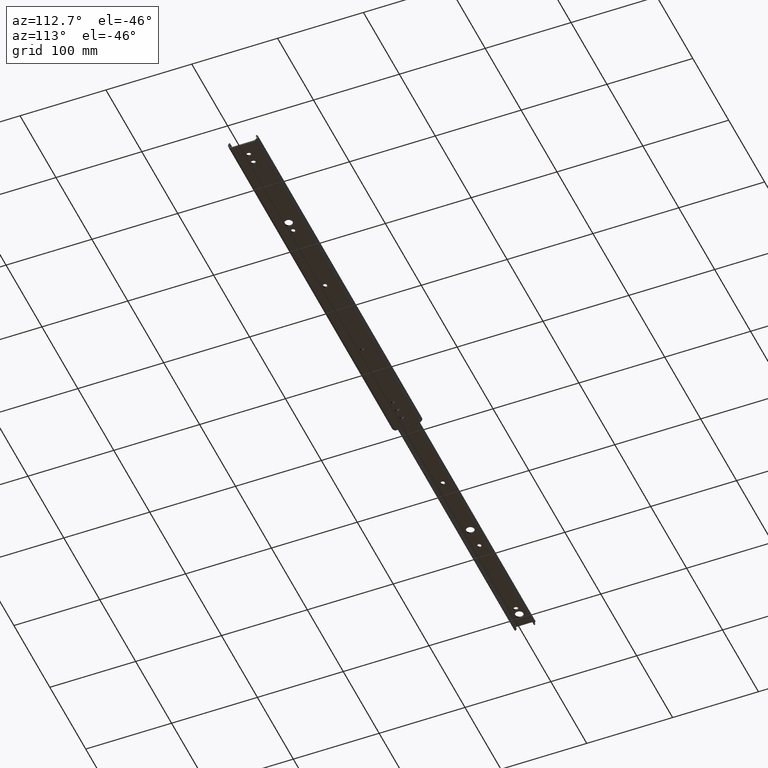
[diagram: clean part render]
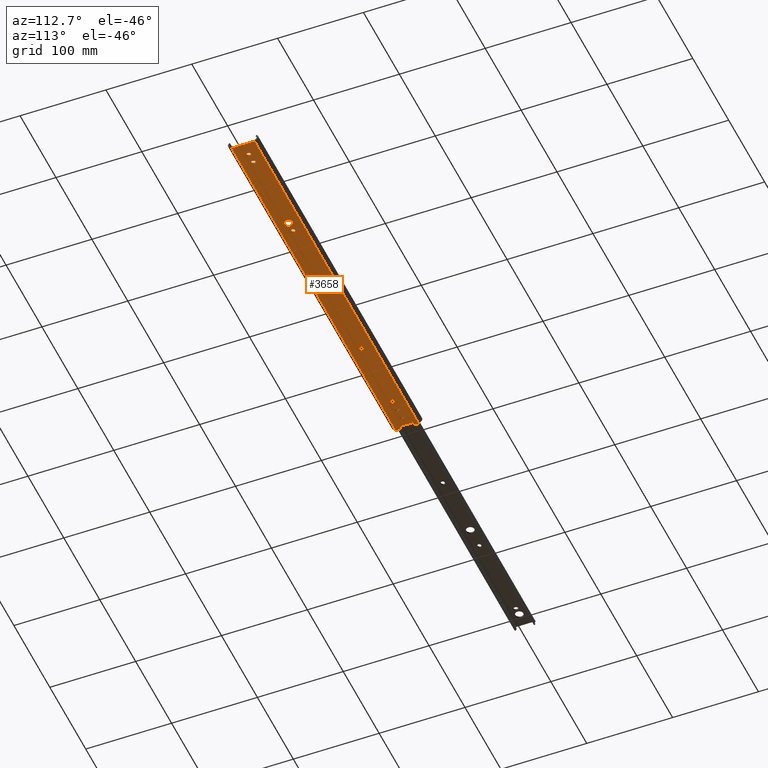
[diagram: same view with one face highlighted and labeled with its STEP entity id]
A machine part, auxiliary view. The second image highlights one B-rep face of the part: STEP entity #3658.
In plain terms, the highlighted planar face has unit normal (0, 0, 1).
Its self-contained STEP definition (entity closure, byte-faithful):
#4 = CARTESIAN_POINT ( 'NONE',  ( 441.3000000000000700, 0.4000000000000299400, -2.168404344971008900E-016 ) ) ;
#15 = CARTESIAN_POINT ( 'NONE',  ( 439.0500000000000100, 0.4000000000001403000, -2.168404344971008900E-016 ) ) ;
#31 = CARTESIAN_POINT ( 'NONE',  ( 28.60000000000000100, 0.4000000000000039600, -2.168404344971008900E-016 ) ) ;
#49 = VERTEX_POINT ( 'NONE', #1474 ) ;
#56 = CARTESIAN_POINT ( 'NONE',  ( 317.9000000000000900, 4.459067650181453500E-014, 0.0000000000000000000 ) ) ;
#104 = CARTESIAN_POINT ( 'NONE',  ( 457.1999999999999900, 2.249999999999955100, 0.0000000000000000000 ) ) ;
#120 = VERTEX_POINT ( 'NONE', #374 ) ;
#125 = ORIENTED_EDGE ( 'NONE', *, *, #1478, .T. ) ;
#132 = VERTEX_POINT ( 'NONE', #1329 ) ;
#135 = ORIENTED_EDGE ( 'NONE', *, *, #1177, .T. ) ;
#155 = ORIENTED_EDGE ( 'NONE', *, *, #2026, .T. ) ;
#161 = CARTESIAN_POINT ( 'NONE',  ( 317.0999999999999700, 2.249999999999955100, 0.0000000000000000000 ) ) ;
#164 = CARTESIAN_POINT ( 'NONE',  ( 127.4000000000000200, 1.579959826756716300E-014, 0.0000000000000000000 ) ) ;
#183 = ORIENTED_EDGE ( 'NONE', *, *, #3178, .T. ) ;
#190 = AXIS2_PLACEMENT_3D ( 'NONE', #797, #3042, #1117 ) ;
#201 = CARTESIAN_POINT ( 'NONE',  ( 30.85000000000000100, 0.4000000000000043000, -2.168404344971008900E-016 ) ) ;
#202 = ORIENTED_EDGE ( 'NONE', *, *, #1398, .T. ) ;
#214 = CARTESIAN_POINT ( 'NONE',  ( 13.64999999999999500, -0.3999999999999946400, 0.0000000000000000000 ) ) ;
#215 = FACE_BOUND ( 'NONE', #3186, .T. ) ;
#223 = ORIENTED_EDGE ( 'NONE', *, *, #1412, .T. ) ;
#233 = EDGE_CURVE ( 'NONE', #2104, #672, #3168, .T. ) ;
#260 = CARTESIAN_POINT ( 'NONE',  ( 457.1999999999999900, 2.249999999999992000, 0.0000000000000000000 ) ) ;
#264 = AXIS2_PLACEMENT_3D ( 'NONE', #164, #2426, #502 ) ;
#276 = CIRCLE ( 'NONE', #2463, 2.250000000000001800 ) ;
#293 = VERTEX_POINT ( 'NONE', #1776 ) ;
#299 = VERTEX_POINT ( 'NONE', #161 ) ;
#303 = DIRECTION ( 'NONE',  ( 0.0000000000000000000, 0.0000000000000000000, 1.000000000000000000 ) ) ;
#311 = DIRECTION ( 'NONE',  ( 1.000000000000000000, 0.0000000000000000000, 0.0000000000000000000 ) ) ;
#312 = DIRECTION ( 'NONE',  ( -0.0000000000000000000, 1.000000000000000000, -0.0000000000000000000 ) ) ;
#318 = LINE ( 'NONE', #3065, #2800 ) ;
#324 = EDGE_CURVE ( 'NONE', #3863, #1524, #3798, .T. ) ;
#325 = VERTEX_POINT ( 'NONE', #2106 ) ;
#327 = CARTESIAN_POINT ( 'NONE',  ( 430.8500000000000800, 0.4000000000000841800, -2.168404344971008900E-016 ) ) ;
#328 = CARTESIAN_POINT ( 'NONE',  ( 127.4000000000000200, 2.249999999999992000, 0.0000000000000000000 ) ) ;
#334 = DIRECTION ( 'NONE',  ( 1.000000000000000000, 0.0000000000000000000, 0.0000000000000000000 ) ) ;
#335 = VECTOR ( 'NONE', #596, 1000.000000000000000 ) ;
#343 = CARTESIAN_POINT ( 'NONE',  ( 426.3500000000000800, -0.4000000000000263300, 0.0000000000000000000 ) ) ;
#345 = CARTESIAN_POINT ( 'NONE',  ( 426.3500000000000800, 0.4000000000000268900, -2.168404344971008900E-016 ) ) ;
#354 = DIRECTION ( 'NONE',  ( -0.0000000000000000000, 1.000000000000000000, -0.0000000000000000000 ) ) ;
#360 = DIRECTION ( 'NONE',  ( 1.000000000000000000, 0.0000000000000000000, 0.0000000000000000000 ) ) ;
#362 = DIRECTION ( 'NONE',  ( 0.0000000000000000000, 0.0000000000000000000, 1.000000000000000000 ) ) ;
#374 = CARTESIAN_POINT ( 'NONE',  ( 13.64999999999999900, 0.3999999999999946400, -2.168404344971008900E-016 ) ) ;
#382 = LINE ( 'NONE', #15, #1141 ) ;
#390 = CARTESIAN_POINT ( 'NONE',  ( 18.15000000000000200, 0.3999999999999964100, -2.168404344971008900E-016 ) ) ;
#404 = AXIS2_PLACEMENT_3D ( 'NONE', #3669, #1767, #3985 ) ;
#407 = CARTESIAN_POINT ( 'NONE',  ( 228.1999999999999900, 2.249999999999968900, 0.0000000000000000000 ) ) ;
#430 = FACE_BOUND ( 'NONE', #1635, .T. ) ;
#441 = VECTOR ( 'NONE', #4068, 1000.000000000000000 ) ;
#449 = LINE ( 'NONE', #3149, #335 ) ;
#459 = CARTESIAN_POINT ( 'NONE',  ( 330.1999999999999900, 0.0000000000000000000, -2.168404344971008900E-016 ) ) ;
#486 = CARTESIAN_POINT ( 'NONE',  ( 40.89999999999999100, 2.249999999999998700, 0.0000000000000000000 ) ) ;
#488 = AXIS2_PLACEMENT_3D ( 'NONE', #1197, #1155, #3013 ) ;
#490 = EDGE_CURVE ( 'NONE', #1271, #1428, #761, .T. ) ;
#502 = DIRECTION ( 'NONE',  ( 1.000000000000000000, 0.0000000000000000000, 0.0000000000000000000 ) ) ;
#515 = CARTESIAN_POINT ( 'NONE',  ( 317.9000000000000900, -2.250000000000044400, 0.0000000000000000000 ) ) ;
#518 = VERTEX_POINT ( 'NONE', #1912 ) ;
#526 = VERTEX_POINT ( 'NONE', #2568 ) ;
#529 = ORIENTED_EDGE ( 'NONE', *, *, #2638, .T. ) ;
#532 = CARTESIAN_POINT ( 'NONE',  ( 441.3000000000000100, -0.3999999999999105900, -2.168404344971008900E-016 ) ) ;
#534 = CARTESIAN_POINT ( 'NONE',  ( 229.0000000000000000, 1.580616412669949000E-014, 0.0000000000000000000 ) ) ;
#541 = VECTOR ( 'NONE', #1561, 1000.000000000000000 ) ;
#555 = CIRCLE ( 'NONE', #3067, 2.250000000000001800 ) ;
#570 = DIRECTION ( 'NONE',  ( 1.000000000000000000, 0.0000000000000000000, -0.0000000000000000000 ) ) ;
#572 = AXIS2_PLACEMENT_3D ( 'NONE', #2306, #362, #2619 ) ;
#575 = VERTEX_POINT ( 'NONE', #2332 ) ;
#586 = VERTEX_POINT ( 'NONE', #3901 ) ;
#588 = CARTESIAN_POINT ( 'NONE',  ( 229.0000000000000000, -2.250000000000030600, 0.0000000000000000000 ) ) ;
#592 = LINE ( 'NONE', #2918, #2953 ) ;
#596 = DIRECTION ( 'NONE',  ( -1.000000000000000000, -0.0000000000000000000, -0.0000000000000000000 ) ) ;
#623 = CARTESIAN_POINT ( 'NONE',  ( 3.799999999999999800, 8.000000000000000000, 0.0000000000000000000 ) ) ;
#627 = ORIENTED_EDGE ( 'NONE', *, *, #3072, .T. ) ;
#631 = VERTEX_POINT ( 'NONE', #1652 ) ;
#633 = VERTEX_POINT ( 'NONE', #1306 ) ;
#641 = LINE ( 'NONE', #4107, #541 ) ;
#643 = CARTESIAN_POINT ( 'NONE',  ( 26.34999999999998400, -0.4000000000000036300, 0.0000000000000000000 ) ) ;
#665 = CARTESIAN_POINT ( 'NONE',  ( 0.0000000000000000000, -13.40000000000015700, 0.0000000000000000000 ) ) ;
#672 = VERTEX_POINT ( 'NONE', #953 ) ;
#681 = CIRCLE ( 'NONE', #1347, 2.250000000000001800 ) ;
#692 = CARTESIAN_POINT ( 'NONE',  ( 28.60000000000000100, -0.3999999999999919200, -2.168404344971008900E-016 ) ) ;
#708 = CARTESIAN_POINT ( 'NONE',  ( 317.0999999999999700, 0.0000000000000000000, 0.0000000000000000000 ) ) ;
#724 = VERTEX_POINT ( 'NONE', #2980 ) ;
#729 = LINE ( 'NONE', #3697, #1686 ) ;
#732 = CARTESIAN_POINT ( 'NONE',  ( 439.0500000000000100, -0.4000000000001400800, 0.0000000000000000000 ) ) ;
#738 = CIRCLE ( 'NONE', #1869, 2.250000000000001800 ) ;
#761 = CIRCLE ( 'NONE', #1241, 2.250000000000001800 ) ;
#764 = CARTESIAN_POINT ( 'NONE',  ( 3.799999999999999400, 7.000000000000000000, 0.0000000000000000000 ) ) ;
#779 = DIRECTION ( 'NONE',  ( 1.000000000000000000, 0.0000000000000000000, 0.0000000000000000000 ) ) ;
#797 = CARTESIAN_POINT ( 'NONE',  ( 428.6000000000000200, -0.3999999999999676600, -2.168404344971008900E-016 ) ) ;
#800 = LINE ( 'NONE', #1439, #4088 ) ;
#825 = CARTESIAN_POINT ( 'NONE',  ( 457.1999999999999900, 2.249999999999968900, 0.0000000000000000000 ) ) ;
#845 = CARTESIAN_POINT ( 'NONE',  ( 0.0000000000000000000, 0.0000000000000000000, 0.0000000000000000000 ) ) ;
#847 = VECTOR ( 'NONE', #1691, 1000.000000000000000 ) ;
#856 = EDGE_CURVE ( 'NONE', #3372, #3863, #4147, .T. ) ;
#859 = DIRECTION ( 'NONE',  ( 1.000000000000000000, 0.0000000000000000000, 0.0000000000000000000 ) ) ;
#873 = DIRECTION ( 'NONE',  ( 0.0000000000000000000, 0.0000000000000000000, 1.000000000000000000 ) ) ;
#876 = PLANE ( 'NONE',  #3417 ) ;
#900 = ORIENTED_EDGE ( 'NONE', *, *, #2782, .T. ) ;
#904 = CARTESIAN_POINT ( 'NONE',  ( 430.8500000000000800, 0.4000000000000841800, -2.168404344971008900E-016 ) ) ;
#911 = VERTEX_POINT ( 'NONE', #4133 ) ;
#927 = DIRECTION ( 'NONE',  ( 0.0000000000000000000, 0.0000000000000000000, 1.000000000000000000 ) ) ;
#929 = ORIENTED_EDGE ( 'NONE', *, *, #1249, .T. ) ;
#938 = ORIENTED_EDGE ( 'NONE', *, *, #1704, .T. ) ;
#943 = ORIENTED_EDGE ( 'NONE', *, *, #3481, .T. ) ;
#944 = CARTESIAN_POINT ( 'NONE',  ( 428.6000000000000200, 0.4000000000000839000, -2.168404344971008900E-016 ) ) ;
#945 = ORIENTED_EDGE ( 'NONE', *, *, #856, .T. ) ;
#953 = CARTESIAN_POINT ( 'NONE',  ( 3.800000000000001600, -6.999999999999999100, 0.0000000000000000000 ) ) ;
#989 = ORIENTED_EDGE ( 'NONE', *, *, #3360, .T. ) ;
#998 = DIRECTION ( 'NONE',  ( 0.0000000000000000000, 0.0000000000000000000, 1.000000000000000000 ) ) ;
#1001 = LINE ( 'NONE', #3811, #2717 ) ;
#1006 = DIRECTION ( 'NONE',  ( 1.000000000000000000, 0.0000000000000000000, 0.0000000000000000000 ) ) ;
#1012 = DIRECTION ( 'NONE',  ( 1.000000000000000000, 0.0000000000000000000, 0.0000000000000000000 ) ) ;
#1013 = DIRECTION ( 'NONE',  ( -1.239088197126290800E-016, 1.000000000000000000, -0.0000000000000000000 ) ) ;
#1028 = DIRECTION ( 'NONE',  ( 1.000000000000000000, 0.0000000000000000000, 0.0000000000000000000 ) ) ;
#1035 = CIRCLE ( 'NONE', #404, 2.250000000000001800 ) ;
#1041 = VECTOR ( 'NONE', #2304, 1000.000000000000000 ) ;
#1076 = AXIS2_PLACEMENT_3D ( 'NONE', #532, #2778, #859 ) ;
#1079 = FACE_BOUND ( 'NONE', #1753, .T. ) ;
#1084 = CARTESIAN_POINT ( 'NONE',  ( 228.1999999999999900, -2.250000000000030600, 0.0000000000000000000 ) ) ;
#1112 = DIRECTION ( 'NONE',  ( 1.000000000000000000, 0.0000000000000000000, -0.0000000000000000000 ) ) ;
#1117 = DIRECTION ( 'NONE',  ( 1.000000000000000000, 0.0000000000000000000, 0.0000000000000000000 ) ) ;
#1132 = ORIENTED_EDGE ( 'NONE', *, *, #1427, .T. ) ;
#1141 = VECTOR ( 'NONE', #3240, 1000.000000000000000 ) ;
#1155 = DIRECTION ( 'NONE',  ( 0.0000000000000000000, 0.0000000000000000000, 1.000000000000000000 ) ) ;
#1174 = EDGE_LOOP ( 'NONE', ( #1847, #1213, #1926, #223, #2093 ) ) ;
#1176 = FACE_BOUND ( 'NONE', #1174, .T. ) ;
#1177 = EDGE_CURVE ( 'NONE', #2713, #2114, #2866, .T. ) ;
#1180 = CIRCLE ( 'NONE', #264, 2.250000000000001800 ) ;
#1197 = CARTESIAN_POINT ( 'NONE',  ( 228.1999999999999900, 1.565920651080180300E-014, 0.0000000000000000000 ) ) ;
#1213 = ORIENTED_EDGE ( 'NONE', *, *, #2653, .T. ) ;
#1216 = EDGE_LOOP ( 'NONE', ( #2035, #3560, #183, #2890, #3633 ) ) ;
#1219 = VERTEX_POINT ( 'NONE', #3979 ) ;
#1227 = DIRECTION ( 'NONE',  ( 0.0000000000000000000, -1.000000000000000000, 0.0000000000000000000 ) ) ;
#1237 = VERTEX_POINT ( 'NONE', #1743 ) ;
#1241 = AXIS2_PLACEMENT_3D ( 'NONE', #2010, #2069, #2084 ) ;
#1249 = EDGE_CURVE ( 'NONE', #724, #2713, #3406, .T. ) ;
#1256 = ORIENTED_EDGE ( 'NONE', *, *, #3203, .T. ) ;
#1271 = VERTEX_POINT ( 'NONE', #588 ) ;
#1290 = DIRECTION ( 'NONE',  ( 1.000000000000000000, 0.0000000000000000000, 0.0000000000000000000 ) ) ;
#1292 = LINE ( 'NONE', #845, #4046 ) ;
#1306 = CARTESIAN_POINT ( 'NONE',  ( 41.70000000000007400, -2.250000000000001300, 0.0000000000000000000 ) ) ;
#1312 = CARTESIAN_POINT ( 'NONE',  ( 18.15000000000000200, -0.4000000000000004700, -2.168404344971008900E-016 ) ) ;
#1329 = CARTESIAN_POINT ( 'NONE',  ( 0.0000000000000000000, -7.999999999999996400, 0.0000000000000000000 ) ) ;
#1347 = AXIS2_PLACEMENT_3D ( 'NONE', #2804, #873, #3117 ) ;
#1370 = EDGE_CURVE ( 'NONE', #1428, #724, #555, .T. ) ;
#1398 = EDGE_CURVE ( 'NONE', #2276, #325, #1292, .T. ) ;
#1412 = EDGE_CURVE ( 'NONE', #3579, #2702, #3744, .T. ) ;
#1414 = VERTEX_POINT ( 'NONE', #2421 ) ;
#1427 = EDGE_CURVE ( 'NONE', #2114, #1271, #2264, .T. ) ;
#1428 = VERTEX_POINT ( 'NONE', #2916 ) ;
#1434 = ORIENTED_EDGE ( 'NONE', *, *, #2171, .T. ) ;
#1439 = CARTESIAN_POINT ( 'NONE',  ( 457.1999999999999900, -2.250000000000044400, 0.0000000000000000000 ) ) ;
#1441 = CARTESIAN_POINT ( 'NONE',  ( 457.1999999999999900, -2.250000000000007500, 0.0000000000000000000 ) ) ;
#1452 = CARTESIAN_POINT ( 'NONE',  ( 127.4000000000000600, -2.250000000000007500, 0.0000000000000000000 ) ) ;
#1456 = DIRECTION ( 'NONE',  ( 0.0000000000000000000, 1.000000000000000000, 0.0000000000000000000 ) ) ;
#1474 = CARTESIAN_POINT ( 'NONE',  ( 43.95000000000000300, 5.072376279910624100E-015, 0.0000000000000000000 ) ) ;
#1478 = EDGE_CURVE ( 'NONE', #293, #3760, #1001, .T. ) ;
#1509 = DIRECTION ( 'NONE',  ( 0.0000000000000000000, 0.0000000000000000000, 1.000000000000000000 ) ) ;
#1524 = VERTEX_POINT ( 'NONE', #343 ) ;
#1528 = DIRECTION ( 'NONE',  ( 0.0000000000000000000, 0.0000000000000000000, 1.000000000000000000 ) ) ;
#1538 = DIRECTION ( 'NONE',  ( 1.000000000000000000, 0.0000000000000000000, 0.0000000000000000000 ) ) ;
#1542 = VECTOR ( 'NONE', #1659, 1000.000000000000000 ) ;
#1561 = DIRECTION ( 'NONE',  ( -1.000000000000000000, -0.0000000000000000000, 0.0000000000000000000 ) ) ;
#1562 = VERTEX_POINT ( 'NONE', #328 ) ;
#1569 = EDGE_LOOP ( 'NONE', ( #155, #945, #2794, #943 ) ) ;
#1633 = CARTESIAN_POINT ( 'NONE',  ( 40.89999999999999100, 4.974404535978835700E-015, 0.0000000000000000000 ) ) ;
#1635 = EDGE_LOOP ( 'NONE', ( #2339, #2043, #3509, #627, #938 ) ) ;
#1646 = LINE ( 'NONE', #764, #3245 ) ;
#1650 = EDGE_CURVE ( 'NONE', #3760, #2276, #449, .T. ) ;
#1652 = CARTESIAN_POINT ( 'NONE',  ( 41.70000000000001700, 2.249999999999998700, 0.0000000000000000000 ) ) ;
#1659 = DIRECTION ( 'NONE',  ( 1.000000000000000000, 0.0000000000000000000, 0.0000000000000000000 ) ) ;
#1666 = AXIS2_PLACEMENT_3D ( 'NONE', #3706, #1808, #2134 ) ;
#1686 = VECTOR ( 'NONE', #4007, 1000.000000000000000 ) ;
#1691 = DIRECTION ( 'NONE',  ( 0.0000000000000000000, 1.000000000000000000, 0.0000000000000000000 ) ) ;
#1704 = EDGE_CURVE ( 'NONE', #49, #631, #3544, .T. ) ;
#1724 = DIRECTION ( 'NONE',  ( 0.0000000000000000000, 0.0000000000000000000, 1.000000000000000000 ) ) ;
#1733 = VERTEX_POINT ( 'NONE', #665 ) ;
#1739 = VERTEX_POINT ( 'NONE', #201 ) ;
#1740 = LINE ( 'NONE', #260, #3434 ) ;
#1743 = CARTESIAN_POINT ( 'NONE',  ( 129.6500000000000100, 1.579959826756716300E-014, 0.0000000000000000000 ) ) ;
#1753 = EDGE_LOOP ( 'NONE', ( #3086, #2796, #2622, #529 ) ) ;
#1754 = LINE ( 'NONE', #3254, #1542 ) ;
#1762 = AXIS2_PLACEMENT_3D ( 'NONE', #31, #2305, #360 ) ;
#1767 = DIRECTION ( 'NONE',  ( 0.0000000000000000000, 0.0000000000000000000, 1.000000000000000000 ) ) ;
#1776 = CARTESIAN_POINT ( 'NONE',  ( 3.799999999999999800, 7.000000000000000000, -2.168404344971008900E-016 ) ) ;
#1799 = DIRECTION ( 'NONE',  ( 0.0000000000000000000, -1.000000000000000000, 0.0000000000000000000 ) ) ;
#1801 = DIRECTION ( 'NONE',  ( -1.000000000000000000, -0.0000000000000000000, 0.0000000000000000000 ) ) ;
#1808 = DIRECTION ( 'NONE',  ( 0.0000000000000000000, 0.0000000000000000000, 1.000000000000000000 ) ) ;
#1847 = ORIENTED_EDGE ( 'NONE', *, *, #4013, .T. ) ;
#1869 = AXIS2_PLACEMENT_3D ( 'NONE', #3628, #1724, #3945 ) ;
#1873 = EDGE_CURVE ( 'NONE', #3200, #3938, #2009, .T. ) ;
#1912 = CARTESIAN_POINT ( 'NONE',  ( 30.85000000000000100, -0.3999999999999919200, -2.168404344971008900E-016 ) ) ;
#1926 = ORIENTED_EDGE ( 'NONE', *, *, #2152, .T. ) ;
#1932 = VERTEX_POINT ( 'NONE', #3194 ) ;
#1943 = FACE_BOUND ( 'NONE', #1569, .T. ) ;
#1950 = CIRCLE ( 'NONE', #3650, 2.249999999999974200 ) ;
#1981 = VERTEX_POINT ( 'NONE', #2837 ) ;
#1991 = LINE ( 'NONE', #2844, #3577 ) ;
#2001 = CIRCLE ( 'NONE', #2883, 2.249999999999974200 ) ;
#2003 = CARTESIAN_POINT ( 'NONE',  ( 40.89999999999999100, -2.250000000000001300, 0.0000000000000000000 ) ) ;
#2009 = CIRCLE ( 'NONE', #3960, 2.250000000000001800 ) ;
#2010 = CARTESIAN_POINT ( 'NONE',  ( 229.0000000000000000, 1.580616412669949000E-014, 0.0000000000000000000 ) ) ;
#2017 = CARTESIAN_POINT ( 'NONE',  ( 320.1500000000000300, 4.459067650181453500E-014, 0.0000000000000000000 ) ) ;
#2026 = EDGE_CURVE ( 'NONE', #575, #3372, #3939, .T. ) ;
#2029 = ORIENTED_EDGE ( 'NONE', *, *, #3485, .T. ) ;
#2035 = ORIENTED_EDGE ( 'NONE', *, *, #3699, .T. ) ;
#2043 = ORIENTED_EDGE ( 'NONE', *, *, #1873, .T. ) ;
#2044 = FACE_BOUND ( 'NONE', #1216, .T. ) ;
#2057 = LINE ( 'NONE', #2175, #441 ) ;
#2067 = VECTOR ( 'NONE', #2659, 1000.000000000000000 ) ;
#2069 = DIRECTION ( 'NONE',  ( 0.0000000000000000000, 0.0000000000000000000, 1.000000000000000000 ) ) ;
#2084 = DIRECTION ( 'NONE',  ( 1.000000000000000000, 0.0000000000000000000, 0.0000000000000000000 ) ) ;
#2093 = ORIENTED_EDGE ( 'NONE', *, *, #2269, .T. ) ;
#2104 = VERTEX_POINT ( 'NONE', #3627 ) ;
#2106 = CARTESIAN_POINT ( 'NONE',  ( 0.0000000000000000000, 13.40000000000015700, 0.0000000000000000000 ) ) ;
#2109 = DIRECTION ( 'NONE',  ( -0.0000000000000000000, 1.000000000000000000, -0.0000000000000000000 ) ) ;
#2114 = VERTEX_POINT ( 'NONE', #1084 ) ;
#2133 = CARTESIAN_POINT ( 'NONE',  ( 3.799999999999999800, 8.000000000000000000, 0.0000000000000000000 ) ) ;
#2134 = DIRECTION ( 'NONE',  ( 1.000000000000000000, 0.0000000000000000000, 0.0000000000000000000 ) ) ;
#2142 = AXIS2_PLACEMENT_3D ( 'NONE', #3427, #1509, #3735 ) ;
#2146 = CIRCLE ( 'NONE', #1762, 2.250000000000001800 ) ;
#2150 = CIRCLE ( 'NONE', #2142, 2.250000000000001800 ) ;
#2152 = EDGE_CURVE ( 'NONE', #526, #3579, #800, .T. ) ;
#2171 = EDGE_CURVE ( 'NONE', #672, #293, #1646, .T. ) ;
#2175 = CARTESIAN_POINT ( 'NONE',  ( 457.1999999999999900, 2.249999999999998700, 0.0000000000000000000 ) ) ;
#2188 = EDGE_CURVE ( 'NONE', #132, #2104, #1754, .T. ) ;
#2192 = LINE ( 'NONE', #2254, #2945 ) ;
#2195 = VECTOR ( 'NONE', #2818, 1000.000000000000000 ) ;
#2221 = DIRECTION ( 'NONE',  ( 0.0000000000000000000, 0.0000000000000000000, 1.000000000000000000 ) ) ;
#2236 = LINE ( 'NONE', #104, #3921 ) ;
#2246 = CIRCLE ( 'NONE', #3563, 4.750000000000032000 ) ;
#2254 = CARTESIAN_POINT ( 'NONE',  ( 30.85000000000000100, 0.4000000000000043000, -2.168404344971008900E-016 ) ) ;
#2264 = LINE ( 'NONE', #2315, #2067 ) ;
#2269 = EDGE_CURVE ( 'NONE', #2702, #3073, #2959, .T. ) ;
#2274 = AXIS2_PLACEMENT_3D ( 'NONE', #2929, #998, #3237 ) ;
#2275 = DIRECTION ( 'NONE',  ( 0.0000000000000000000, 0.0000000000000000000, 1.000000000000000000 ) ) ;
#2276 = VERTEX_POINT ( 'NONE', #3692 ) ;
#2299 = LINE ( 'NONE', #3131, #2195 ) ;
#2304 = DIRECTION ( 'NONE',  ( 0.0000000000000000000, 1.000000000000000000, 0.0000000000000000000 ) ) ;
#2305 = DIRECTION ( 'NONE',  ( 0.0000000000000000000, 0.0000000000000000000, 1.000000000000000000 ) ) ;
#2306 = CARTESIAN_POINT ( 'NONE',  ( 15.90000000000000000, -0.4000000000000009700, -2.168404344971008900E-016 ) ) ;
#2315 = CARTESIAN_POINT ( 'NONE',  ( 457.1999999999999900, -2.250000000000030600, 0.0000000000000000000 ) ) ;
#2321 = VERTEX_POINT ( 'NONE', #214 ) ;
#2332 = CARTESIAN_POINT ( 'NONE',  ( 430.8500000000000800, -0.3999999999999664900, -2.168404344971008900E-016 ) ) ;
#2339 = ORIENTED_EDGE ( 'NONE', *, *, #2385, .T. ) ;
#2385 = EDGE_CURVE ( 'NONE', #631, #3200, #2057, .T. ) ;
#2421 = CARTESIAN_POINT ( 'NONE',  ( 443.5499999999999500, -0.3999999999999094300, -2.168404344971008900E-016 ) ) ;
#2426 = DIRECTION ( 'NONE',  ( 0.0000000000000000000, 0.0000000000000000000, 1.000000000000000000 ) ) ;
#2433 = DIRECTION ( 'NONE',  ( 0.0000000000000000000, 0.0000000000000000000, 1.000000000000000000 ) ) ;
#2457 = CIRCLE ( 'NONE', #1076, 2.249999999999974200 ) ;
#2463 = AXIS2_PLACEMENT_3D ( 'NONE', #692, #2943, #1012 ) ;
#2471 = VECTOR ( 'NONE', #1801, 1000.000000000000000 ) ;
#2496 = DIRECTION ( 'NONE',  ( 0.0000000000000000000, 0.0000000000000000000, 1.000000000000000000 ) ) ;
#2520 = DIRECTION ( 'NONE',  ( -1.000000000000000000, -0.0000000000000000000, 0.0000000000000000000 ) ) ;
#2551 = ORIENTED_EDGE ( 'NONE', *, *, #2971, .T. ) ;
#2553 = LINE ( 'NONE', #3284, #847 ) ;
#2562 = EDGE_CURVE ( 'NONE', #3868, #2679, #592, .T. ) ;
#2564 = CARTESIAN_POINT ( 'NONE',  ( 457.1999999999999900, 13.40000000000015700, 0.0000000000000000000 ) ) ;
#2568 = CARTESIAN_POINT ( 'NONE',  ( 317.0999999999999700, -2.250000000000044400, 0.0000000000000000000 ) ) ;
#2602 = ORIENTED_EDGE ( 'NONE', *, *, #2701, .T. ) ;
#2611 = EDGE_CURVE ( 'NONE', #1932, #3981, #382, .T. ) ;
#2615 = CARTESIAN_POINT ( 'NONE',  ( 457.1999999999999900, 0.0000000000000000000, 0.0000000000000000000 ) ) ;
#2619 = DIRECTION ( 'NONE',  ( 1.000000000000000000, 0.0000000000000000000, 0.0000000000000000000 ) ) ;
#2620 = ORIENTED_EDGE ( 'NONE', *, *, #3414, .T. ) ;
#2622 = ORIENTED_EDGE ( 'NONE', *, *, #3559, .T. ) ;
#2638 = EDGE_CURVE ( 'NONE', #2884, #518, #276, .T. ) ;
#2639 = EDGE_CURVE ( 'NONE', #586, #3767, #2755, .T. ) ;
#2653 = EDGE_CURVE ( 'NONE', #299, #526, #2001, .T. ) ;
#2659 = DIRECTION ( 'NONE',  ( 1.000000000000000000, 0.0000000000000000000, -0.0000000000000000000 ) ) ;
#2679 = VERTEX_POINT ( 'NONE', #390 ) ;
#2685 = DIRECTION ( 'NONE',  ( -1.084202172485504400E-016, 1.000000000000000000, -0.0000000000000000000 ) ) ;
#2694 = FACE_OUTER_BOUND ( 'NONE', #2949, .T. ) ;
#2697 = ORIENTED_EDGE ( 'NONE', *, *, #3859, .T. ) ;
#2701 = EDGE_CURVE ( 'NONE', #1733, #132, #2553, .T. ) ;
#2702 = VERTEX_POINT ( 'NONE', #2017 ) ;
#2710 = DIRECTION ( 'NONE',  ( 0.0000000000000000000, 0.0000000000000000000, 1.000000000000000000 ) ) ;
#2713 = VERTEX_POINT ( 'NONE', #407 ) ;
#2717 = VECTOR ( 'NONE', #2954, 1000.000000000000000 ) ;
#2726 = ORIENTED_EDGE ( 'NONE', *, *, #2915, .T. ) ;
#2738 = EDGE_LOOP ( 'NONE', ( #3967, #2697 ) ) ;
#2741 = ORIENTED_EDGE ( 'NONE', *, *, #2188, .T. ) ;
#2746 = CIRCLE ( 'NONE', #190, 2.250000000000029800 ) ;
#2755 = LINE ( 'NONE', #2615, #1041 ) ;
#2756 = EDGE_CURVE ( 'NONE', #3981, #1414, #2457, .T. ) ;
#2757 = CARTESIAN_POINT ( 'NONE',  ( 41.70000000000000300, 5.072376279910624100E-015, 0.0000000000000000000 ) ) ;
#2778 = DIRECTION ( 'NONE',  ( 0.0000000000000000000, 0.0000000000000000000, 1.000000000000000000 ) ) ;
#2782 = EDGE_CURVE ( 'NONE', #586, #1733, #641, .T. ) ;
#2794 = ORIENTED_EDGE ( 'NONE', *, *, #324, .T. ) ;
#2796 = ORIENTED_EDGE ( 'NONE', *, *, #4063, .T. ) ;
#2797 = FACE_BOUND ( 'NONE', #3516, .T. ) ;
#2800 = VECTOR ( 'NONE', #2109, 1000.000000000000000 ) ;
#2804 = CARTESIAN_POINT ( 'NONE',  ( 127.4000000000000200, 1.579959826756716300E-014, 0.0000000000000000000 ) ) ;
#2818 = DIRECTION ( 'NONE',  ( 1.000000000000000000, -0.0000000000000000000, -0.0000000000000000000 ) ) ;
#2824 = ORIENTED_EDGE ( 'NONE', *, *, #490, .T. ) ;
#2837 = CARTESIAN_POINT ( 'NONE',  ( 126.5999999999999900, -2.250000000000007500, 0.0000000000000000000 ) ) ;
#2844 = CARTESIAN_POINT ( 'NONE',  ( 13.64999999999999900, 0.3999999999999946400, -2.168404344971008900E-016 ) ) ;
#2866 = CIRCLE ( 'NONE', #488, 2.250000000000001800 ) ;
#2873 = VECTOR ( 'NONE', #3705, 1000.000000000000000 ) ;
#2883 = AXIS2_PLACEMENT_3D ( 'NONE', #708, #2957, #1028 ) ;
#2884 = VERTEX_POINT ( 'NONE', #643 ) ;
#2890 = ORIENTED_EDGE ( 'NONE', *, *, #3310, .T. ) ;
#2915 = EDGE_CURVE ( 'NONE', #911, #1932, #1950, .T. ) ;
#2916 = CARTESIAN_POINT ( 'NONE',  ( 231.2500000000000000, 1.580616412669949000E-014, 0.0000000000000000000 ) ) ;
#2918 = CARTESIAN_POINT ( 'NONE',  ( 18.15000000000000200, 0.3999999999999964100, -2.168404344971008900E-016 ) ) ;
#2929 = CARTESIAN_POINT ( 'NONE',  ( 330.1999999999999900, 0.0000000000000000000, -2.168404344971008900E-016 ) ) ;
#2943 = DIRECTION ( 'NONE',  ( 0.0000000000000000000, 0.0000000000000000000, 1.000000000000000000 ) ) ;
#2945 = VECTOR ( 'NONE', #312, 1000.000000000000000 ) ;
#2949 = EDGE_LOOP ( 'NONE', ( #3078, #1434, #125, #3668, #202, #989, #3672, #900, #2602, #2741 ) ) ;
#2953 = VECTOR ( 'NONE', #3224, 1000.000000000000000 ) ;
#2954 = DIRECTION ( 'NONE',  ( -1.084202172485504400E-016, 1.000000000000000000, -0.0000000000000000000 ) ) ;
#2957 = DIRECTION ( 'NONE',  ( 0.0000000000000000000, 0.0000000000000000000, 1.000000000000000000 ) ) ;
#2959 = CIRCLE ( 'NONE', #1666, 2.249999999999974200 ) ;
#2971 = EDGE_CURVE ( 'NONE', #2321, #3868, #3684, .T. ) ;
#2980 = CARTESIAN_POINT ( 'NONE',  ( 229.0000000000000000, 2.249999999999968900, 0.0000000000000000000 ) ) ;
#3013 = DIRECTION ( 'NONE',  ( 1.000000000000000000, 0.0000000000000000000, 0.0000000000000000000 ) ) ;
#3038 = VERTEX_POINT ( 'NONE', #3584 ) ;
#3042 = DIRECTION ( 'NONE',  ( 0.0000000000000000000, 0.0000000000000000000, 1.000000000000000000 ) ) ;
#3065 = CARTESIAN_POINT ( 'NONE',  ( 443.5499999999999500, 0.4000000000000302200, -2.168404344971008900E-016 ) ) ;
#3067 = AXIS2_PLACEMENT_3D ( 'NONE', #534, #2433, #3428 ) ;
#3068 = CARTESIAN_POINT ( 'NONE',  ( 26.34999999999999800, 0.4000000000000037400, -2.168404344971008900E-016 ) ) ;
#3072 = EDGE_CURVE ( 'NONE', #633, #49, #738, .T. ) ;
#3073 = VERTEX_POINT ( 'NONE', #3314 ) ;
#3078 = ORIENTED_EDGE ( 'NONE', *, *, #233, .T. ) ;
#3086 = ORIENTED_EDGE ( 'NONE', *, *, #3824, .T. ) ;
#3104 = EDGE_CURVE ( 'NONE', #3512, #3038, #2246, .T. ) ;
#3117 = DIRECTION ( 'NONE',  ( 1.000000000000000000, 0.0000000000000000000, 0.0000000000000000000 ) ) ;
#3131 = CARTESIAN_POINT ( 'NONE',  ( 457.1999999999999900, 13.40000000000015700, 0.0000000000000000000 ) ) ;
#3149 = CARTESIAN_POINT ( 'NONE',  ( 0.0000000000000000000, 8.000000000000000000, 0.0000000000000000000 ) ) ;
#3168 = LINE ( 'NONE', #2133, #4001 ) ;
#3178 = EDGE_CURVE ( 'NONE', #1981, #3183, #3193, .T. ) ;
#3183 = VERTEX_POINT ( 'NONE', #1452 ) ;
#3186 = EDGE_LOOP ( 'NONE', ( #4125, #2029, #2620, #2551 ) ) ;
#3193 = LINE ( 'NONE', #1441, #3634 ) ;
#3194 = CARTESIAN_POINT ( 'NONE',  ( 439.0500000000000100, 0.4000000000001403000, -2.168404344971008900E-016 ) ) ;
#3198 = EDGE_CURVE ( 'NONE', #1237, #1562, #1180, .T. ) ;
#3200 = VERTEX_POINT ( 'NONE', #486 ) ;
#3203 = EDGE_CURVE ( 'NONE', #1414, #911, #318, .T. ) ;
#3224 = DIRECTION ( 'NONE',  ( -0.0000000000000000000, 1.000000000000000000, -0.0000000000000000000 ) ) ;
#3237 = DIRECTION ( 'NONE',  ( 1.000000000000000000, 0.0000000000000000000, 0.0000000000000000000 ) ) ;
#3240 = DIRECTION ( 'NONE',  ( 0.0000000000000000000, -1.000000000000000000, 0.0000000000000000000 ) ) ;
#3245 = VECTOR ( 'NONE', #1013, 1000.000000000000000 ) ;
#3251 = CARTESIAN_POINT ( 'NONE',  ( 426.3500000000000800, 0.4000000000000268900, -2.168404344971008900E-016 ) ) ;
#3254 = CARTESIAN_POINT ( 'NONE',  ( 1.912740249771085900E-015, -8.000000000000000000, 0.0000000000000000000 ) ) ;
#3277 = EDGE_LOOP ( 'NONE', ( #929, #135, #1132, #2824, #3585 ) ) ;
#3284 = CARTESIAN_POINT ( 'NONE',  ( 0.0000000000000000000, 0.0000000000000000000, 0.0000000000000000000 ) ) ;
#3291 = LINE ( 'NONE', #3068, #4123 ) ;
#3310 = EDGE_CURVE ( 'NONE', #3183, #1237, #681, .T. ) ;
#3314 = CARTESIAN_POINT ( 'NONE',  ( 317.9000000000001500, 2.249999999999955100, 0.0000000000000000000 ) ) ;
#3355 = DIRECTION ( 'NONE',  ( 1.000000000000000000, 0.0000000000000000000, -0.0000000000000000000 ) ) ;
#3356 = CARTESIAN_POINT ( 'NONE',  ( 334.9500000000000500, 0.0000000000000000000, -2.168404344971008900E-016 ) ) ;
#3360 = EDGE_CURVE ( 'NONE', #325, #3767, #2299, .T. ) ;
#3372 = VERTEX_POINT ( 'NONE', #904 ) ;
#3406 = LINE ( 'NONE', #825, #2471 ) ;
#3414 = EDGE_CURVE ( 'NONE', #120, #2321, #1991, .T. ) ;
#3417 = AXIS2_PLACEMENT_3D ( 'NONE', #3436, #2496, #570 ) ;
#3427 = CARTESIAN_POINT ( 'NONE',  ( 126.5999999999999900, 1.565264065166947400E-014, 0.0000000000000000000 ) ) ;
#3428 = DIRECTION ( 'NONE',  ( 1.000000000000000000, 0.0000000000000000000, 0.0000000000000000000 ) ) ;
#3434 = VECTOR ( 'NONE', #2520, 1000.000000000000000 ) ;
#3436 = CARTESIAN_POINT ( 'NONE',  ( 457.1999999999999900, 0.0000000000000000000, 0.0000000000000000000 ) ) ;
#3481 = EDGE_CURVE ( 'NONE', #1524, #575, #2746, .T. ) ;
#3485 = EDGE_CURVE ( 'NONE', #2679, #120, #1035, .T. ) ;
#3488 = ORIENTED_EDGE ( 'NONE', *, *, #2611, .T. ) ;
#3509 = ORIENTED_EDGE ( 'NONE', *, *, #3561, .T. ) ;
#3512 = VERTEX_POINT ( 'NONE', #3356 ) ;
#3516 = EDGE_LOOP ( 'NONE', ( #1256, #2726, #3488, #3621 ) ) ;
#3526 = FACE_BOUND ( 'NONE', #2738, .T. ) ;
#3544 = CIRCLE ( 'NONE', #4041, 2.250000000000001800 ) ;
#3552 = CARTESIAN_POINT ( 'NONE',  ( 126.5999999999999900, 2.249999999999992000, 0.0000000000000000000 ) ) ;
#3559 = EDGE_CURVE ( 'NONE', #1219, #2884, #3291, .T. ) ;
#3560 = ORIENTED_EDGE ( 'NONE', *, *, #3619, .T. ) ;
#3561 = EDGE_CURVE ( 'NONE', #3938, #633, #729, .T. ) ;
#3563 = AXIS2_PLACEMENT_3D ( 'NONE', #459, #2710, #779 ) ;
#3577 = VECTOR ( 'NONE', #1227, 1000.000000000000000 ) ;
#3579 = VERTEX_POINT ( 'NONE', #515 ) ;
#3584 = CARTESIAN_POINT ( 'NONE',  ( 325.4499999999999900, 5.817072295949971800E-016, -2.168404344971008900E-016 ) ) ;
#3585 = ORIENTED_EDGE ( 'NONE', *, *, #1370, .T. ) ;
#3619 = EDGE_CURVE ( 'NONE', #4101, #1981, #2150, .T. ) ;
#3621 = ORIENTED_EDGE ( 'NONE', *, *, #2756, .T. ) ;
#3627 = CARTESIAN_POINT ( 'NONE',  ( 3.800000000000001600, -8.000000000000000000, 0.0000000000000000000 ) ) ;
#3628 = CARTESIAN_POINT ( 'NONE',  ( 41.70000000000000300, 5.072376279910624100E-015, 0.0000000000000000000 ) ) ;
#3630 = FACE_BOUND ( 'NONE', #3277, .T. ) ;
#3633 = ORIENTED_EDGE ( 'NONE', *, *, #3198, .T. ) ;
#3634 = VECTOR ( 'NONE', #3355, 1000.000000000000000 ) ;
#3650 = AXIS2_PLACEMENT_3D ( 'NONE', #4, #2275, #334 ) ;
#3658 = ADVANCED_FACE ( 'NONE', ( #1176, #3630, #2044, #430, #2797, #1943, #1079, #215, #3526, #2694 ), #876, .F. ) ;
#3668 = ORIENTED_EDGE ( 'NONE', *, *, #1650, .T. ) ;
#3669 = CARTESIAN_POINT ( 'NONE',  ( 15.90000000000000000, 0.3999999999999950800, -2.168404344971008900E-016 ) ) ;
#3672 = ORIENTED_EDGE ( 'NONE', *, *, #2639, .F. ) ;
#3677 = CIRCLE ( 'NONE', #2274, 4.750000000000032000 ) ;
#3684 = CIRCLE ( 'NONE', #572, 2.250000000000001800 ) ;
#3692 = CARTESIAN_POINT ( 'NONE',  ( 0.0000000000000000000, 8.000000000000000000, 0.0000000000000000000 ) ) ;
#3697 = CARTESIAN_POINT ( 'NONE',  ( 457.1999999999999900, -2.250000000000001300, 0.0000000000000000000 ) ) ;
#3699 = EDGE_CURVE ( 'NONE', #1562, #4101, #1740, .T. ) ;
#3705 = DIRECTION ( 'NONE',  ( 0.0000000000000000000, -1.000000000000000000, 0.0000000000000000000 ) ) ;
#3706 = CARTESIAN_POINT ( 'NONE',  ( 317.9000000000000900, 4.459067650181453500E-014, 0.0000000000000000000 ) ) ;
#3735 = DIRECTION ( 'NONE',  ( 1.000000000000000000, 0.0000000000000000000, 0.0000000000000000000 ) ) ;
#3744 = CIRCLE ( 'NONE', #3903, 2.249999999999974200 ) ;
#3760 = VERTEX_POINT ( 'NONE', #623 ) ;
#3767 = VERTEX_POINT ( 'NONE', #2564 ) ;
#3798 = LINE ( 'NONE', #3251, #2873 ) ;
#3811 = CARTESIAN_POINT ( 'NONE',  ( 3.799999999999999800, 8.000000000000000000, 0.0000000000000000000 ) ) ;
#3824 = EDGE_CURVE ( 'NONE', #518, #1739, #2192, .T. ) ;
#3839 = VECTOR ( 'NONE', #354, 1000.000000000000000 ) ;
#3859 = EDGE_CURVE ( 'NONE', #3038, #3512, #3677, .T. ) ;
#3863 = VERTEX_POINT ( 'NONE', #345 ) ;
#3868 = VERTEX_POINT ( 'NONE', #1312 ) ;
#3901 = CARTESIAN_POINT ( 'NONE',  ( 457.1999999999999900, -13.40000000000015700, 0.0000000000000000000 ) ) ;
#3903 = AXIS2_PLACEMENT_3D ( 'NONE', #56, #1528, #311 ) ;
#3921 = VECTOR ( 'NONE', #3928, 1000.000000000000000 ) ;
#3928 = DIRECTION ( 'NONE',  ( -1.000000000000000000, -0.0000000000000000000, 0.0000000000000000000 ) ) ;
#3938 = VERTEX_POINT ( 'NONE', #2003 ) ;
#3939 = LINE ( 'NONE', #327, #3839 ) ;
#3945 = DIRECTION ( 'NONE',  ( 1.000000000000000000, 0.0000000000000000000, 0.0000000000000000000 ) ) ;
#3950 = AXIS2_PLACEMENT_3D ( 'NONE', #944, #303, #1006 ) ;
#3960 = AXIS2_PLACEMENT_3D ( 'NONE', #1633, #2221, #1290 ) ;
#3967 = ORIENTED_EDGE ( 'NONE', *, *, #3104, .T. ) ;
#3979 = CARTESIAN_POINT ( 'NONE',  ( 26.34999999999999800, 0.4000000000000037400, -2.168404344971008900E-016 ) ) ;
#3981 = VERTEX_POINT ( 'NONE', #732 ) ;
#3985 = DIRECTION ( 'NONE',  ( 1.000000000000000000, 0.0000000000000000000, 0.0000000000000000000 ) ) ;
#4001 = VECTOR ( 'NONE', #2685, 1000.000000000000000 ) ;
#4007 = DIRECTION ( 'NONE',  ( 1.000000000000000000, 0.0000000000000000000, -0.0000000000000000000 ) ) ;
#4013 = EDGE_CURVE ( 'NONE', #3073, #299, #2236, .T. ) ;
#4041 = AXIS2_PLACEMENT_3D ( 'NONE', #2757, #927, #1538 ) ;
#4046 = VECTOR ( 'NONE', #1456, 1000.000000000000000 ) ;
#4063 = EDGE_CURVE ( 'NONE', #1739, #1219, #2146, .T. ) ;
#4068 = DIRECTION ( 'NONE',  ( -1.000000000000000000, -0.0000000000000000000, 0.0000000000000000000 ) ) ;
#4088 = VECTOR ( 'NONE', #1112, 1000.000000000000000 ) ;
#4101 = VERTEX_POINT ( 'NONE', #3552 ) ;
#4107 = CARTESIAN_POINT ( 'NONE',  ( 457.1999999999999900, -13.40000000000015700, 0.0000000000000000000 ) ) ;
#4123 = VECTOR ( 'NONE', #1799, 1000.000000000000000 ) ;
#4125 = ORIENTED_EDGE ( 'NONE', *, *, #2562, .T. ) ;
#4133 = CARTESIAN_POINT ( 'NONE',  ( 443.5499999999999500, 0.4000000000000302200, -2.168404344971008900E-016 ) ) ;
#4147 = CIRCLE ( 'NONE', #3950, 2.250000000000029800 ) ;